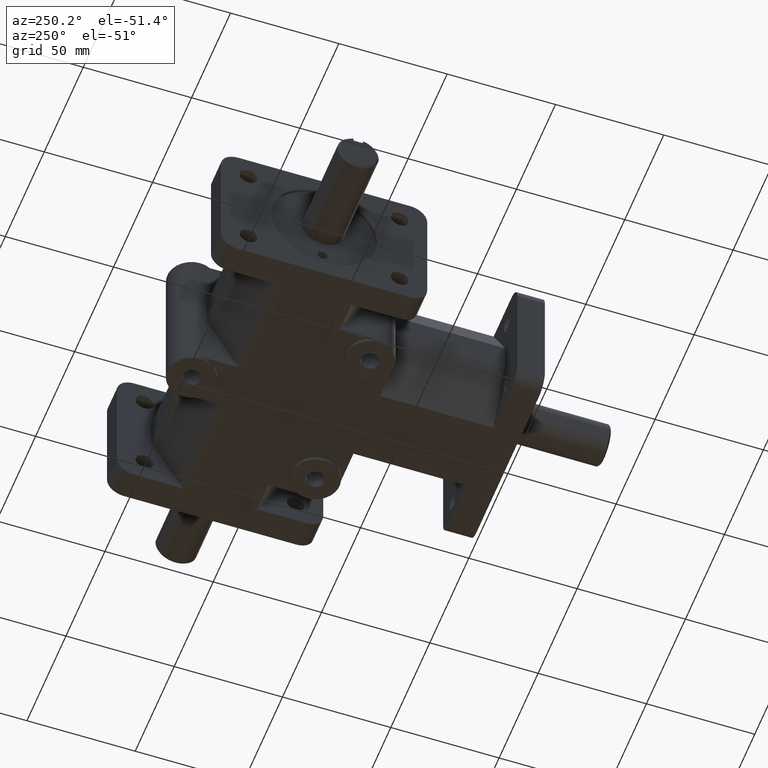
[diagram: clean part render]
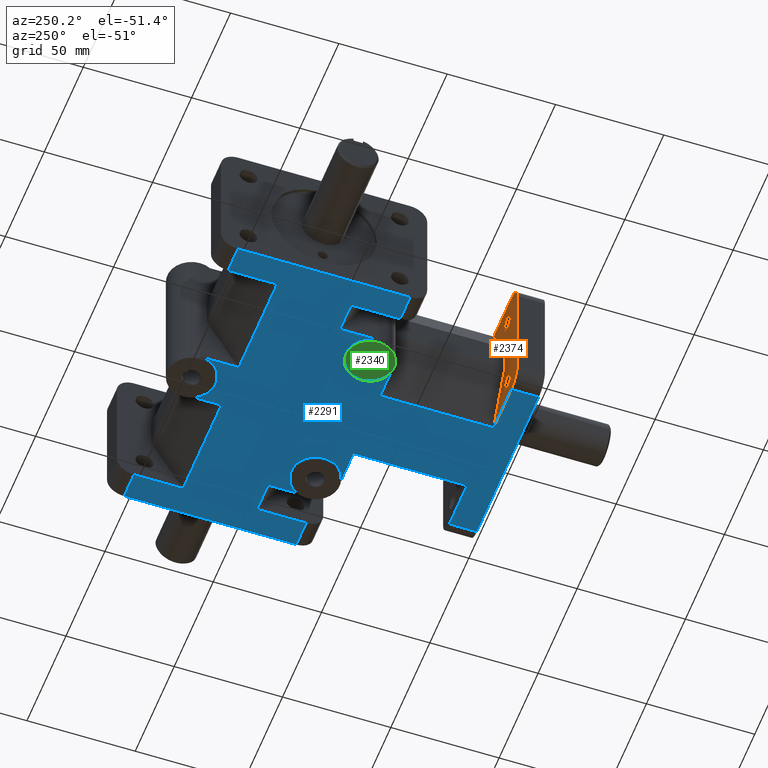
[diagram: same view with three faces highlighted in distinct colors, each labeled with its STEP entity id]
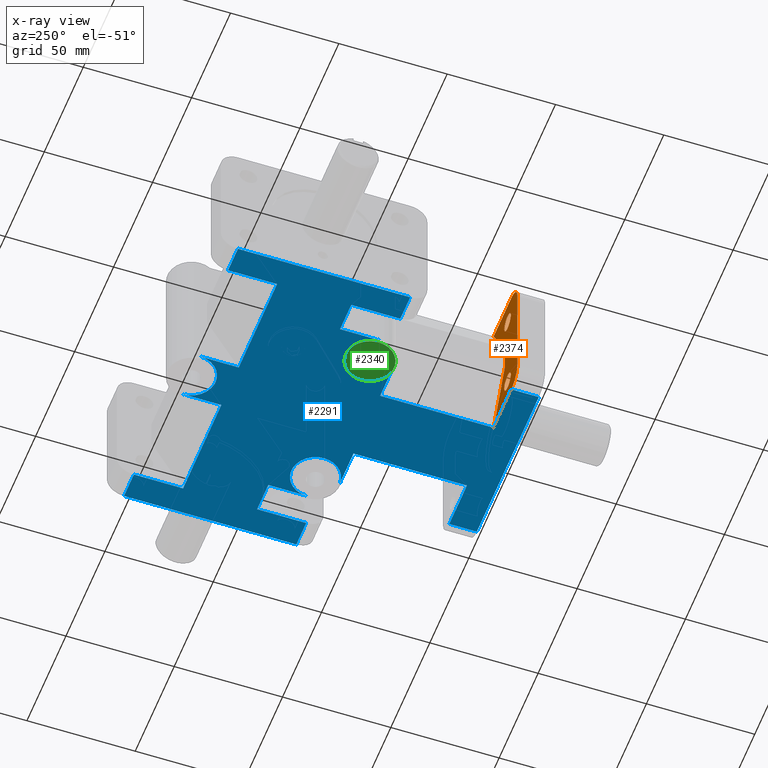
[diagram: x-ray of the same camera — body ghosted, the three highlighted faces saturated]
A machine part, auxiliary view with three faces highlighted in distinct colors.
The next image is the same camera in x-ray (body ghosted, the three faces saturated) — at least one of them is partly hidden behind the body in this view.
Their STEP definitions:

[orange] entity #2374 — the highlighted planar face has unit normal (0, 1, 0).
#80=LINE('',#3563,#302);
#101=LINE('',#3608,#323);
#193=LINE('',#3913,#415);
#197=LINE('',#3921,#419);
#233=LINE('',#3988,#455);
#234=LINE('',#3990,#456);
#302=VECTOR('',#2852,1.);
#323=VECTOR('',#2883,1.);
#415=VECTOR('',#3183,1.);
#419=VECTOR('',#3189,1.);
#455=VECTOR('',#3267,1.);
#456=VECTOR('',#3270,1.);
#548=FACE_BOUND('',#827,.T.);
#549=FACE_BOUND('',#828,.T.);
#662=FACE_OUTER_BOUND('',#826,.T.);
#826=EDGE_LOOP('',(#2085,#2086,#2087,#2088,#2089,#2090,#2091,#2092));
#827=EDGE_LOOP('',(#2093));
#828=EDGE_LOOP('',(#2094));
#887=CIRCLE('',#2453,0.31);
#889=CIRCLE('',#2456,0.31);
#938=CIRCLE('',#2553,0.16375);
#939=CIRCLE('',#2555,0.16375);
#1006=VERTEX_POINT('',#3439);
#1007=VERTEX_POINT('',#3441);
#1010=VERTEX_POINT('',#3448);
#1011=VERTEX_POINT('',#3450);
#1056=VERTEX_POINT('',#3562);
#1075=VERTEX_POINT('',#3606);
#1139=VERTEX_POINT('',#3819);
#1140=VERTEX_POINT('',#3823);
#1166=VERTEX_POINT('',#3912);
#1169=VERTEX_POINT('',#3920);
#1230=EDGE_CURVE('',#1006,#1007,#887,.T.);
#1234=EDGE_CURVE('',#1010,#1011,#889,.T.);
#1292=EDGE_CURVE('',#1056,#1007,#80,.T.);
#1317=EDGE_CURVE('',#1010,#1075,#101,.T.);
#1416=EDGE_CURVE('',#1139,#1139,#938,.T.);
#1418=EDGE_CURVE('',#1140,#1140,#939,.T.);
#1460=EDGE_CURVE('',#1166,#1075,#193,.F.);
#1464=EDGE_CURVE('',#1056,#1169,#197,.F.);
#1500=EDGE_CURVE('',#1166,#1169,#233,.T.);
#1501=EDGE_CURVE('',#1011,#1006,#234,.T.);
#2085=ORIENTED_EDGE('',*,*,#1230,.F.);
#2086=ORIENTED_EDGE('',*,*,#1501,.F.);
#2087=ORIENTED_EDGE('',*,*,#1234,.F.);
#2088=ORIENTED_EDGE('',*,*,#1317,.T.);
#2089=ORIENTED_EDGE('',*,*,#1460,.F.);
#2090=ORIENTED_EDGE('',*,*,#1500,.T.);
#2091=ORIENTED_EDGE('',*,*,#1464,.F.);
#2092=ORIENTED_EDGE('',*,*,#1292,.T.);
#2093=ORIENTED_EDGE('',*,*,#1416,.T.);
#2094=ORIENTED_EDGE('',*,*,#1418,.T.);
#2251=PLANE('',#2617);
#2374=ADVANCED_FACE('',(#662,#548,#549),#2251,.T.);
#2453=AXIS2_PLACEMENT_3D('',#3442,#2747,#2748);
#2456=AXIS2_PLACEMENT_3D('',#3451,#2755,#2756);
#2553=AXIS2_PLACEMENT_3D('',#3821,#3076,#3077);
#2555=AXIS2_PLACEMENT_3D('',#3825,#3081,#3082);
#2617=AXIS2_PLACEMENT_3D('',#3989,#3268,#3269);
#2747=DIRECTION('center_axis',(0.,-1.,0.));
#2748=DIRECTION('ref_axis',(-0.707106781186548,0.,-0.707106781186548));
#2755=DIRECTION('center_axis',(0.,-1.,0.));
#2756=DIRECTION('ref_axis',(-0.707106781186548,0.,0.707106781186548));
#2852=DIRECTION('',(-1.,0.,0.));
#2883=DIRECTION('',(1.,0.,0.));
#3076=DIRECTION('center_axis',(0.,-1.,0.));
#3077=DIRECTION('ref_axis',(1.,0.,0.));
#3081=DIRECTION('center_axis',(0.,-1.,0.));
#3082=DIRECTION('ref_axis',(1.,0.,0.));
#3183=DIRECTION('',(-0.499999825156179,0.,-0.866025504730542));
#3189=DIRECTION('',(0.499999825156179,0.,-0.866025504730542));
#3267=DIRECTION('',(0.,0.,-1.));
#3268=DIRECTION('center_axis',(0.,1.,0.));
#3269=DIRECTION('ref_axis',(0.,0.,-1.));
#3270=DIRECTION('',(0.,0.,-1.));
#3439=CARTESIAN_POINT('',(-1.875,0.5,-0.94));
#3441=CARTESIAN_POINT('',(-1.565,0.5,-1.25));
#3442=CARTESIAN_POINT('Origin',(-1.565,0.5,-0.94));
#3448=CARTESIAN_POINT('',(-1.565,0.5,1.25));
#3450=CARTESIAN_POINT('',(-1.875,0.5,0.94));
#3451=CARTESIAN_POINT('Origin',(-1.565,0.5,0.94));
#3562=CARTESIAN_POINT('',(-0.67265,0.5,-1.25));
#3563=CARTESIAN_POINT('',(-1.875,0.5,-1.25));
#3606=CARTESIAN_POINT('',(-0.67265,0.5,1.25));
#3608=CARTESIAN_POINT('',(-0.625,0.5,1.25));
#3819=CARTESIAN_POINT('',(-1.53875,0.5,-0.8125));
#3821=CARTESIAN_POINT('Origin',(-1.375,0.5,-0.8125));
#3823=CARTESIAN_POINT('',(-1.53875,0.5,0.8125));
#3825=CARTESIAN_POINT('Origin',(-1.375,0.5,0.8125));
#3912=CARTESIAN_POINT('',(-1.25,0.5,0.25));
#3913=CARTESIAN_POINT('',(-1.15978907511826,0.5,0.406249978144526));
#3920=CARTESIAN_POINT('',(-1.25,0.5,-0.25));
#3921=CARTESIAN_POINT('',(-1.15978907511826,0.5,-0.406249978144526));
#3988=CARTESIAN_POINT('',(-1.25,0.5,0.));
#3989=CARTESIAN_POINT('Origin',(-1.25,0.5,0.));
#3990=CARTESIAN_POINT('',(-1.875,0.5,0.));

[blue] entity #2291 — the highlighted planar face has unit normal (0, 0, 1).
#28=LINE('',#3386,#250);
#35=LINE('',#3416,#257);
#38=LINE('',#3431,#260);
#41=LINE('',#3443,#263);
#44=LINE('',#3458,#266);
#49=LINE('',#3479,#271);
#52=LINE('',#3491,#274);
#62=LINE('',#3513,#284);
#66=LINE('',#3522,#288);
#68=LINE('',#3534,#290);
#74=LINE('',#3548,#296);
#75=LINE('',#3550,#297);
#76=LINE('',#3552,#298);
#77=LINE('',#3558,#299);
#78=LINE('',#3560,#300);
#79=LINE('',#3561,#301);
#80=LINE('',#3563,#302);
#81=LINE('',#3565,#303);
#82=LINE('',#3567,#304);
#83=LINE('',#3571,#305);
#84=LINE('',#3572,#306);
#85=LINE('',#3573,#307);
#86=LINE('',#3575,#308);
#87=LINE('',#3577,#309);
#88=LINE('',#3579,#310);
#89=LINE('',#3583,#311);
#90=LINE('',#3584,#312);
#250=VECTOR('',#2698,1.);
#257=VECTOR('',#2725,1.);
#260=VECTOR('',#2738,1.);
#263=VECTOR('',#2749,1.);
#266=VECTOR('',#2762,1.);
#271=VECTOR('',#2781,1.);
#274=VECTOR('',#2792,1.);
#284=VECTOR('',#2808,1.);
#288=VECTOR('',#2818,1.);
#290=VECTOR('',#2830,1.);
#296=VECTOR('',#2842,1.);
#297=VECTOR('',#2843,1.);
#298=VECTOR('',#2844,1.);
#299=VECTOR('',#2849,1.);
#300=VECTOR('',#2850,1.);
#301=VECTOR('',#2851,1.);
#302=VECTOR('',#2852,1.);
#303=VECTOR('',#2853,1.);
#304=VECTOR('',#2854,1.);
#305=VECTOR('',#2857,1.);
#306=VECTOR('',#2858,1.);
#307=VECTOR('',#2859,1.);
#308=VECTOR('',#2860,1.);
#309=VECTOR('',#2861,1.);
#310=VECTOR('',#2862,1.);
#311=VECTOR('',#2865,1.);
#312=VECTOR('',#2866,1.);
#579=FACE_OUTER_BOUND('',#728,.T.);
#728=EDGE_LOOP('',(#1635,#1636,#1637,#1638,#1639,#1640,#1641,#1642,#1643,
#1644,#1645,#1646,#1647,#1648,#1649,#1650,#1651,#1652,#1653,#1654,#1655,
#1656,#1657,#1658,#1659,#1660,#1661,#1662,#1663,#1664,#1665));
#908=CIRCLE('',#2484,0.4375);
#909=CIRCLE('',#2485,0.4375);
#910=CIRCLE('',#2486,0.4375);
#911=CIRCLE('',#2487,0.4375);
#981=VERTEX_POINT('',#3383);
#982=VERTEX_POINT('',#3385);
#992=VERTEX_POINT('',#3409);
#995=VERTEX_POINT('',#3414);
#1001=VERTEX_POINT('',#3428);
#1002=VERTEX_POINT('',#3430);
#1004=VERTEX_POINT('',#3436);
#1007=VERTEX_POINT('',#3441);
#1013=VERTEX_POINT('',#3455);
#1014=VERTEX_POINT('',#3457);
#1020=VERTEX_POINT('',#3472);
#1023=VERTEX_POINT('',#3477);
#1028=VERTEX_POINT('',#3490);
#1037=VERTEX_POINT('',#3511);
#1044=VERTEX_POINT('',#3533);
#1050=VERTEX_POINT('',#3549);
#1051=VERTEX_POINT('',#3551);
#1052=VERTEX_POINT('',#3553);
#1053=VERTEX_POINT('',#3555);
#1054=VERTEX_POINT('',#3557);
#1055=VERTEX_POINT('',#3559);
#1056=VERTEX_POINT('',#3562);
#1057=VERTEX_POINT('',#3564);
#1058=VERTEX_POINT('',#3566);
#1059=VERTEX_POINT('',#3568);
#1060=VERTEX_POINT('',#3570);
#1061=VERTEX_POINT('',#3574);
#1062=VERTEX_POINT('',#3576);
#1063=VERTEX_POINT('',#3578);
#1064=VERTEX_POINT('',#3580);
#1065=VERTEX_POINT('',#3582);
#1205=EDGE_CURVE('',#981,#982,#28,.T.);
#1219=EDGE_CURVE('',#995,#992,#35,.T.);
#1225=EDGE_CURVE('',#1001,#1002,#38,.T.);
#1231=EDGE_CURVE('',#1007,#1004,#41,.T.);
#1237=EDGE_CURVE('',#1013,#1014,#44,.T.);
#1247=EDGE_CURVE('',#1023,#1020,#49,.T.);
#1252=EDGE_CURVE('',#982,#1028,#52,.T.);
#1264=EDGE_CURVE('',#1037,#995,#62,.T.);
#1270=EDGE_CURVE('',#1004,#1001,#66,.T.);
#1276=EDGE_CURVE('',#1014,#1044,#68,.T.);
#1284=EDGE_CURVE('',#992,#981,#74,.T.);
#1285=EDGE_CURVE('',#1050,#1037,#75,.T.);
#1286=EDGE_CURVE('',#1051,#1050,#76,.T.);
#1287=EDGE_CURVE('',#1051,#1052,#908,.T.);
#1288=EDGE_CURVE('',#1052,#1053,#909,.T.);
#1289=EDGE_CURVE('',#1054,#1053,#77,.T.);
#1290=EDGE_CURVE('',#1055,#1054,#78,.T.);
#1291=EDGE_CURVE('',#1002,#1055,#79,.T.);
#1292=EDGE_CURVE('',#1056,#1007,#80,.T.);
#1293=EDGE_CURVE('',#1057,#1056,#81,.T.);
#1294=EDGE_CURVE('',#1058,#1057,#82,.T.);
#1295=EDGE_CURVE('',#1058,#1059,#910,.T.);
#1296=EDGE_CURVE('',#1060,#1059,#83,.T.);
#1297=EDGE_CURVE('',#1044,#1060,#84,.T.);
#1298=EDGE_CURVE('',#1020,#1013,#85,.T.);
#1299=EDGE_CURVE('',#1061,#1023,#86,.T.);
#1300=EDGE_CURVE('',#1062,#1061,#87,.T.);
#1301=EDGE_CURVE('',#1063,#1062,#88,.T.);
#1302=EDGE_CURVE('',#1063,#1064,#911,.T.);
#1303=EDGE_CURVE('',#1065,#1064,#89,.T.);
#1304=EDGE_CURVE('',#1028,#1065,#90,.T.);
#1635=ORIENTED_EDGE('',*,*,#1205,.F.);
#1636=ORIENTED_EDGE('',*,*,#1284,.F.);
#1637=ORIENTED_EDGE('',*,*,#1219,.F.);
#1638=ORIENTED_EDGE('',*,*,#1264,.F.);
#1639=ORIENTED_EDGE('',*,*,#1285,.F.);
#1640=ORIENTED_EDGE('',*,*,#1286,.F.);
#1641=ORIENTED_EDGE('',*,*,#1287,.T.);
#1642=ORIENTED_EDGE('',*,*,#1288,.T.);
#1643=ORIENTED_EDGE('',*,*,#1289,.F.);
#1644=ORIENTED_EDGE('',*,*,#1290,.F.);
#1645=ORIENTED_EDGE('',*,*,#1291,.F.);
#1646=ORIENTED_EDGE('',*,*,#1225,.F.);
#1647=ORIENTED_EDGE('',*,*,#1270,.F.);
#1648=ORIENTED_EDGE('',*,*,#1231,.F.);
#1649=ORIENTED_EDGE('',*,*,#1292,.F.);
#1650=ORIENTED_EDGE('',*,*,#1293,.F.);
#1651=ORIENTED_EDGE('',*,*,#1294,.F.);
#1652=ORIENTED_EDGE('',*,*,#1295,.T.);
#1653=ORIENTED_EDGE('',*,*,#1296,.F.);
#1654=ORIENTED_EDGE('',*,*,#1297,.F.);
#1655=ORIENTED_EDGE('',*,*,#1276,.F.);
#1656=ORIENTED_EDGE('',*,*,#1237,.F.);
#1657=ORIENTED_EDGE('',*,*,#1298,.F.);
#1658=ORIENTED_EDGE('',*,*,#1247,.F.);
#1659=ORIENTED_EDGE('',*,*,#1299,.F.);
#1660=ORIENTED_EDGE('',*,*,#1300,.F.);
#1661=ORIENTED_EDGE('',*,*,#1301,.F.);
#1662=ORIENTED_EDGE('',*,*,#1302,.T.);
#1663=ORIENTED_EDGE('',*,*,#1303,.F.);
#1664=ORIENTED_EDGE('',*,*,#1304,.F.);
#1665=ORIENTED_EDGE('',*,*,#1252,.F.);
#2195=PLANE('',#2483);
#2291=ADVANCED_FACE('',(#579),#2195,.F.);
#2483=AXIS2_PLACEMENT_3D('',#3547,#2840,#2841);
#2484=AXIS2_PLACEMENT_3D('',#3554,#2845,#2846);
#2485=AXIS2_PLACEMENT_3D('',#3556,#2847,#2848);
#2486=AXIS2_PLACEMENT_3D('',#3569,#2855,#2856);
#2487=AXIS2_PLACEMENT_3D('',#3581,#2863,#2864);
#2698=DIRECTION('',(-1.,0.,0.));
#2725=DIRECTION('',(1.,0.,0.));
#2738=DIRECTION('',(0.,1.,0.));
#2749=DIRECTION('',(0.,-1.,0.));
#2762=DIRECTION('',(1.,0.,0.));
#2781=DIRECTION('',(-1.,0.,0.));
#2792=DIRECTION('',(0.,-1.,0.));
#2808=DIRECTION('',(0.,-1.,0.));
#2818=DIRECTION('',(1.,0.,0.));
#2830=DIRECTION('',(0.,1.,0.));
#2840=DIRECTION('center_axis',(0.,0.,1.));
#2841=DIRECTION('ref_axis',(-1.,0.,0.));
#2842=DIRECTION('',(0.,1.,0.));
#2843=DIRECTION('',(1.,0.,0.));
#2844=DIRECTION('',(0.,1.,0.));
#2845=DIRECTION('center_axis',(0.,0.,1.));
#2846=DIRECTION('ref_axis',(1.,0.,0.));
#2847=DIRECTION('center_axis',(0.,0.,1.));
#2848=DIRECTION('ref_axis',(1.,0.,0.));
#2849=DIRECTION('',(1.,0.,0.));
#2850=DIRECTION('',(0.,1.,0.));
#2851=DIRECTION('',(-1.,0.,0.));
#2852=DIRECTION('',(-1.,0.,0.));
#2853=DIRECTION('',(0.,-1.,0.));
#2854=DIRECTION('',(1.,0.,0.));
#2855=DIRECTION('center_axis',(0.,0.,1.));
#2856=DIRECTION('ref_axis',(1.,0.,0.));
#2857=DIRECTION('',(0.,-1.,0.));
#2858=DIRECTION('',(1.,0.,0.));
#2859=DIRECTION('',(0.,-1.,0.));
#2860=DIRECTION('',(0.,1.,0.));
#2861=DIRECTION('',(-1.,0.,0.));
#2862=DIRECTION('',(0.,-1.,0.));
#2863=DIRECTION('center_axis',(0.,0.,1.));
#2864=DIRECTION('ref_axis',(1.,0.,0.));
#2865=DIRECTION('',(0.,1.,0.));
#2866=DIRECTION('',(-1.,0.,0.));
#3383=CARTESIAN_POINT('',(2.875,5.94,-1.25));
#3385=CARTESIAN_POINT('',(2.375,5.94,-1.25));
#3386=CARTESIAN_POINT('',(1.4375,5.94,-1.25));
#3409=CARTESIAN_POINT('',(2.875,2.81,-1.25));
#3414=CARTESIAN_POINT('',(2.375,2.81,-1.25));
#3416=CARTESIAN_POINT('',(1.1875,2.81,-1.25));
#3428=CARTESIAN_POINT('',(1.565,0.,-1.25));
#3430=CARTESIAN_POINT('',(1.565,0.5,-1.25));
#3431=CARTESIAN_POINT('',(1.565,1.62991940443693,-1.25));
#3436=CARTESIAN_POINT('',(-1.565,0.,-1.25));
#3441=CARTESIAN_POINT('',(-1.565,0.5,-1.25));
#3443=CARTESIAN_POINT('',(-1.565,1.87991940443693,-1.25));
#3455=CARTESIAN_POINT('',(-2.875,2.81,-1.25));
#3457=CARTESIAN_POINT('',(-2.375,2.81,-1.25));
#3458=CARTESIAN_POINT('',(-1.4375,2.81,-1.25));
#3472=CARTESIAN_POINT('',(-2.875,5.94,-1.25));
#3477=CARTESIAN_POINT('',(-2.375,5.94,-1.25));
#3479=CARTESIAN_POINT('',(-1.1875,5.94,-1.25));
#3490=CARTESIAN_POINT('',(2.375,5.04765,-1.25));
#3491=CARTESIAN_POINT('',(2.375,4.75491940443693,-1.25));
#3511=CARTESIAN_POINT('',(2.375,3.70235,-1.25));
#3513=CARTESIAN_POINT('',(2.375,2.5,-1.25));
#3522=CARTESIAN_POINT('',(-1.875,0.,-1.25));
#3533=CARTESIAN_POINT('',(-2.375,3.70235,-1.25));
#3534=CARTESIAN_POINT('',(-2.375,2.87991940443693,-1.25));
#3547=CARTESIAN_POINT('Origin',(2.34404509691366E-16,3.25983880887387,-1.25));
#3548=CARTESIAN_POINT('',(2.875,2.5,-1.25));
#3549=CARTESIAN_POINT('',(1.8125,3.70235,-1.25));
#3550=CARTESIAN_POINT('',(0.90625,3.70235,-1.25));
#3551=CARTESIAN_POINT('',(1.8125,3.,-1.25));
#3552=CARTESIAN_POINT('',(1.8125,3.12991940443693,-1.25));
#3553=CARTESIAN_POINT('',(0.9375,3.,-1.25));
#3554=CARTESIAN_POINT('Origin',(1.375,3.,-1.25));
#3555=CARTESIAN_POINT('',(1.375,2.5625,-1.25));
#3556=CARTESIAN_POINT('Origin',(1.375,3.,-1.25));
#3557=CARTESIAN_POINT('',(0.67265,2.5625,-1.25));
#3558=CARTESIAN_POINT('',(1.375,2.5625,-1.25));
#3559=CARTESIAN_POINT('',(0.67265,0.5,-1.25));
#3560=CARTESIAN_POINT('',(0.67265,1.87991940443693,-1.25));
#3561=CARTESIAN_POINT('',(0.9375,0.5,-1.25));
#3562=CARTESIAN_POINT('',(-0.67265,0.5,-1.25));
#3563=CARTESIAN_POINT('',(-1.875,0.5,-1.25));
#3564=CARTESIAN_POINT('',(-0.67265,2.5625,-1.25));
#3565=CARTESIAN_POINT('',(-0.67265,2.91116940443693,-1.25));
#3566=CARTESIAN_POINT('',(-1.375,2.5625,-1.25));
#3567=CARTESIAN_POINT('',(-0.687500000000001,2.5625,-1.25));
#3568=CARTESIAN_POINT('',(-1.8125,3.,-1.25));
#3569=CARTESIAN_POINT('Origin',(-1.375,3.,-1.25));
#3570=CARTESIAN_POINT('',(-1.8125,3.70235,-1.25));
#3571=CARTESIAN_POINT('',(-1.8125,3.,-1.25));
#3572=CARTESIAN_POINT('',(-1.1875,3.70235,-1.25));
#3573=CARTESIAN_POINT('',(-2.875,2.5,-1.25));
#3574=CARTESIAN_POINT('',(-2.375,5.04765,-1.25));
#3575=CARTESIAN_POINT('',(-2.375,5.625,-1.25));
#3576=CARTESIAN_POINT('',(-0.4375,5.04765,-1.25));
#3577=CARTESIAN_POINT('',(-0.21875,5.04765,-1.25));
#3578=CARTESIAN_POINT('',(-0.4375,5.75,-1.25));
#3579=CARTESIAN_POINT('',(-0.4375,4.50491940443693,-1.25));
#3580=CARTESIAN_POINT('',(0.4375,5.75,-1.25));
#3581=CARTESIAN_POINT('Origin',(0.,5.75,-1.25));
#3582=CARTESIAN_POINT('',(0.4375,5.04765,-1.25));
#3583=CARTESIAN_POINT('',(0.4375,5.625,-1.25));
#3584=CARTESIAN_POINT('',(1.1875,5.04765,-1.25));

[green] entity #2340 — the highlighted planar face has unit normal (0, 0, 1).
#535=FACE_BOUND('',#780,.T.);
#628=FACE_OUTER_BOUND('',#779,.T.);
#779=EDGE_LOOP('',(#1912));
#780=EDGE_LOOP('',(#1913));
#946=CIRCLE('',#2567,0.16375);
#953=CIRCLE('',#2578,0.4375);
#1147=VERTEX_POINT('',#3847);
#1154=VERTEX_POINT('',#3868);
#1429=EDGE_CURVE('',#1147,#1147,#946,.T.);
#1439=EDGE_CURVE('',#1154,#1154,#953,.T.);
#1912=ORIENTED_EDGE('',*,*,#1439,.F.);
#1913=ORIENTED_EDGE('',*,*,#1429,.T.);
#2221=PLANE('',#2577);
#2340=ADVANCED_FACE('',(#628,#535),#2221,.F.);
#2567=AXIS2_PLACEMENT_3D('',#3848,#3109,#3110);
#2577=AXIS2_PLACEMENT_3D('',#3867,#3132,#3133);
#2578=AXIS2_PLACEMENT_3D('',#3869,#3134,#3135);
#3109=DIRECTION('center_axis',(0.,0.,1.));
#3110=DIRECTION('ref_axis',(1.,0.,0.));
#3132=DIRECTION('center_axis',(0.,0.,1.));
#3133=DIRECTION('ref_axis',(-1.,0.,0.));
#3134=DIRECTION('center_axis',(0.,0.,1.));
#3135=DIRECTION('ref_axis',(1.,0.,0.));
#3847=CARTESIAN_POINT('',(-1.53875,3.,-1.3125));
#3848=CARTESIAN_POINT('Origin',(-1.375,3.,-1.3125));
#3867=CARTESIAN_POINT('Origin',(-1.33522727272727,3.,-1.3125));
#3868=CARTESIAN_POINT('',(-1.8125,3.,-1.3125));
#3869=CARTESIAN_POINT('Origin',(-1.375,3.,-1.3125));